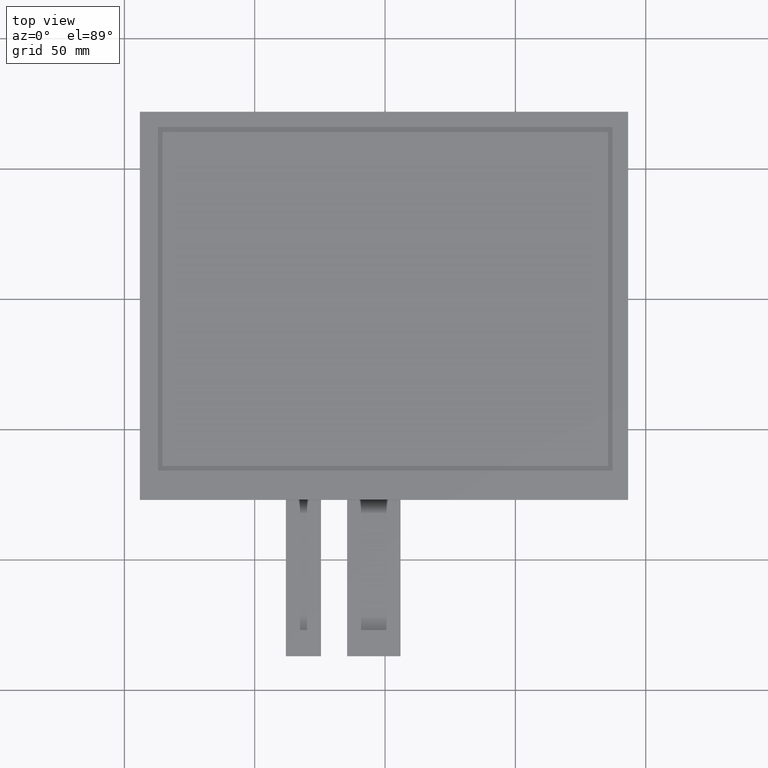
[diagram: clean part render]
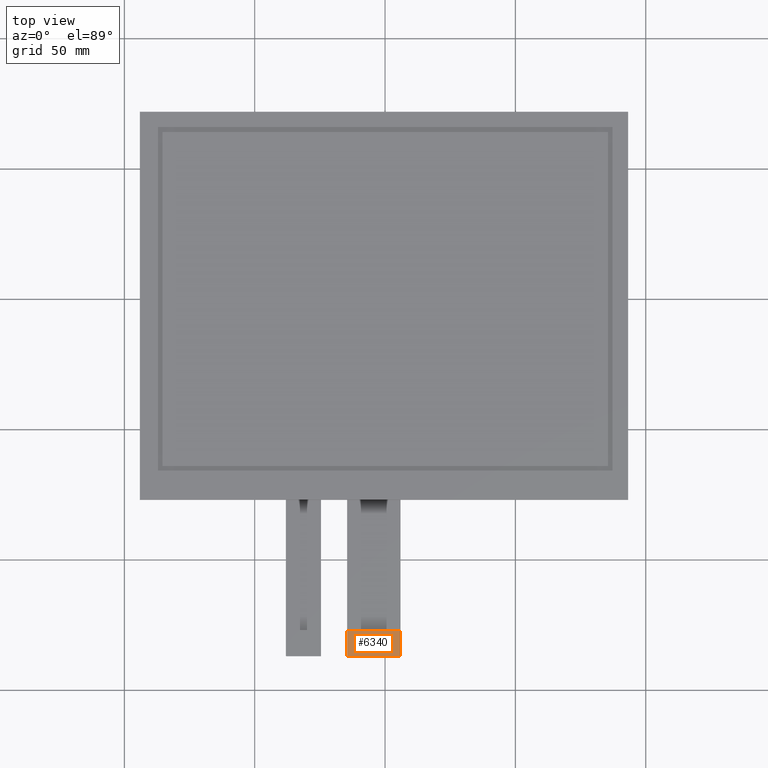
[diagram: same view with one face highlighted and labeled with its STEP entity id]
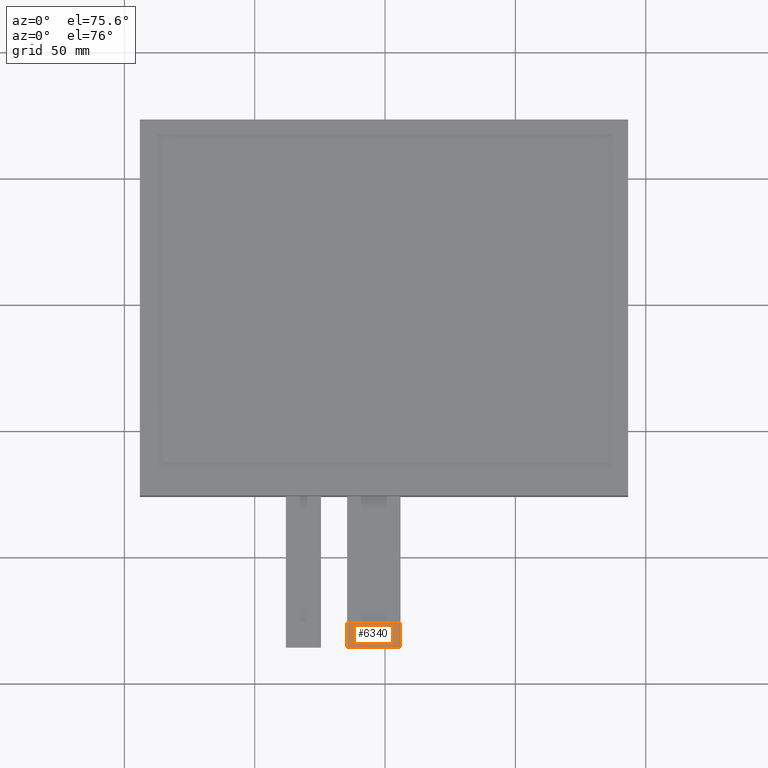
[diagram: same view with one face highlighted and labeled with its STEP entity id]
A machine part, top view. The second image highlights one B-rep face of the part: STEP entity #6340.
A second angle (auxiliary view) of the same face is appended — the face is thin or edge-on in the first view.
In plain terms, the highlighted planar face has unit normal (0, 0, 1).
Its self-contained STEP definition (entity closure, byte-faithful):
#402=PLANE('',#6670);
#704=FACE_OUTER_BOUND('',#1006,.T.);
#1006=EDGE_LOOP('',(#5931,#5932,#5933,#5934,#5935,#5936));
#1041=LINE('',#8217,#1921);
#1856=LINE('',#9860,#2736);
#1862=LINE('',#9872,#2742);
#1864=LINE('',#9875,#2744);
#1921=VECTOR('',#6713,10.);
#2736=VECTOR('',#8086,10.);
#2742=VECTOR('',#8094,10.);
#2744=VECTOR('',#8098,10.);
#2796=CIRCLE('',#6387,0.2);
#2797=CIRCLE('',#6391,0.2);
#2805=VERTEX_POINT('',#8202);
#2806=VERTEX_POINT('',#8204);
#2810=VERTEX_POINT('',#8216);
#2971=VERTEX_POINT('',#8540);
#3359=VERTEX_POINT('',#9859);
#3364=VERTEX_POINT('',#9871);
#3397=EDGE_CURVE('',#2805,#2806,#2796,.T.);
#3403=EDGE_CURVE('',#2810,#2806,#1041,.T.);
#3565=EDGE_CURVE('',#2810,#2971,#2797,.T.);
#4224=EDGE_CURVE('',#3359,#2971,#1856,.T.);
#4230=EDGE_CURVE('',#3364,#3359,#1862,.T.);
#4232=EDGE_CURVE('',#2805,#3364,#1864,.T.);
#5931=ORIENTED_EDGE('',*,*,#3397,.F.);
#5932=ORIENTED_EDGE('',*,*,#4232,.T.);
#5933=ORIENTED_EDGE('',*,*,#4230,.T.);
#5934=ORIENTED_EDGE('',*,*,#4224,.T.);
#5935=ORIENTED_EDGE('',*,*,#3565,.F.);
#5936=ORIENTED_EDGE('',*,*,#3403,.T.);
#6340=ADVANCED_FACE('',(#704),#402,.T.);
#6387=AXIS2_PLACEMENT_3D('',#8205,#6702,#6703);
#6391=AXIS2_PLACEMENT_3D('',#8541,#6877,#6878);
#6670=AXIS2_PLACEMENT_3D('',#9874,#8096,#8097);
#6702=DIRECTION('center_axis',(0.,0.,-1.));
#6703=DIRECTION('ref_axis',(0.707106781186555,-0.70710678118654,0.));
#6713=DIRECTION('',(1.,0.,0.));
#6877=DIRECTION('center_axis',(0.,0.,-1.));
#6878=DIRECTION('ref_axis',(-0.707106781186555,-0.70710678118654,0.));
#8086=DIRECTION('',(2.22044604925031E-16,-1.,0.));
#8094=DIRECTION('',(-1.,0.,0.));
#8096=DIRECTION('center_axis',(0.,0.,1.));
#8097=DIRECTION('ref_axis',(1.,0.,0.));
#8098=DIRECTION('',(-2.22044604925031E-16,1.,0.));
#8202=CARTESIAN_POINT('',(5.95000000000003,-136.8,-0.8));
#8204=CARTESIAN_POINT('',(5.75000000000003,-137.,-0.8));
#8205=CARTESIAN_POINT('Origin',(5.75000000000003,-136.8,-0.8));
#8216=CARTESIAN_POINT('',(-14.35,-137.,-0.8));
#8217=CARTESIAN_POINT('',(-14.55,-137.,-0.8));
#8540=CARTESIAN_POINT('',(-14.55,-136.8,-0.8));
#8541=CARTESIAN_POINT('Origin',(-14.35,-136.8,-0.8));
#9859=CARTESIAN_POINT('',(-14.55,-127.,-0.8));
#9860=CARTESIAN_POINT('',(-14.55,-127.,-0.8));
#9871=CARTESIAN_POINT('',(5.95000000000003,-127.,-0.8));
#9872=CARTESIAN_POINT('',(5.95000000000003,-127.,-0.8));
#9874=CARTESIAN_POINT('Origin',(-4.29999999999997,-132.,-0.8));
#9875=CARTESIAN_POINT('',(5.95000000000003,-137.,-0.8));